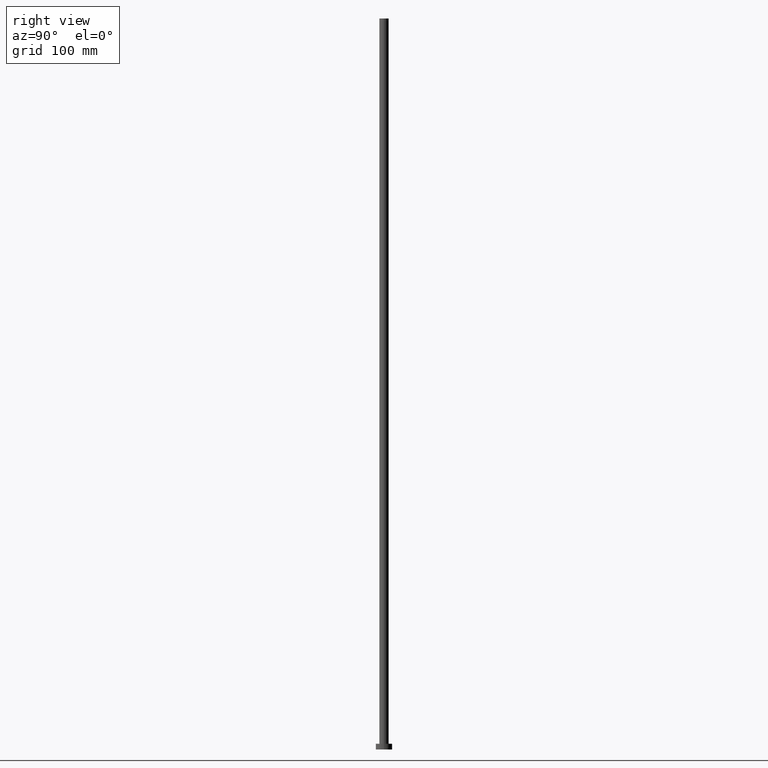
[diagram: clean part render]
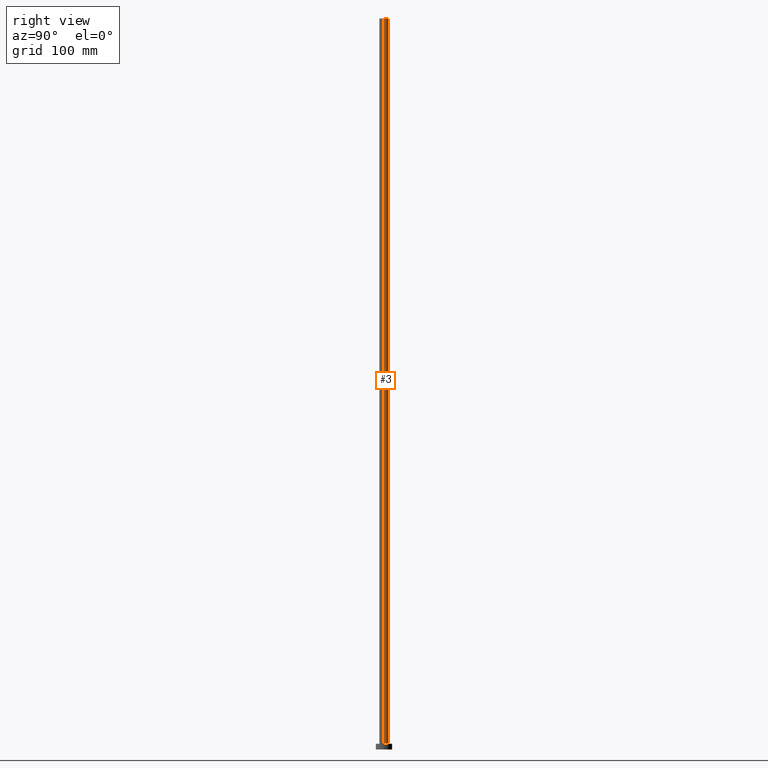
[diagram: same view with one face highlighted and labeled with its STEP entity id]
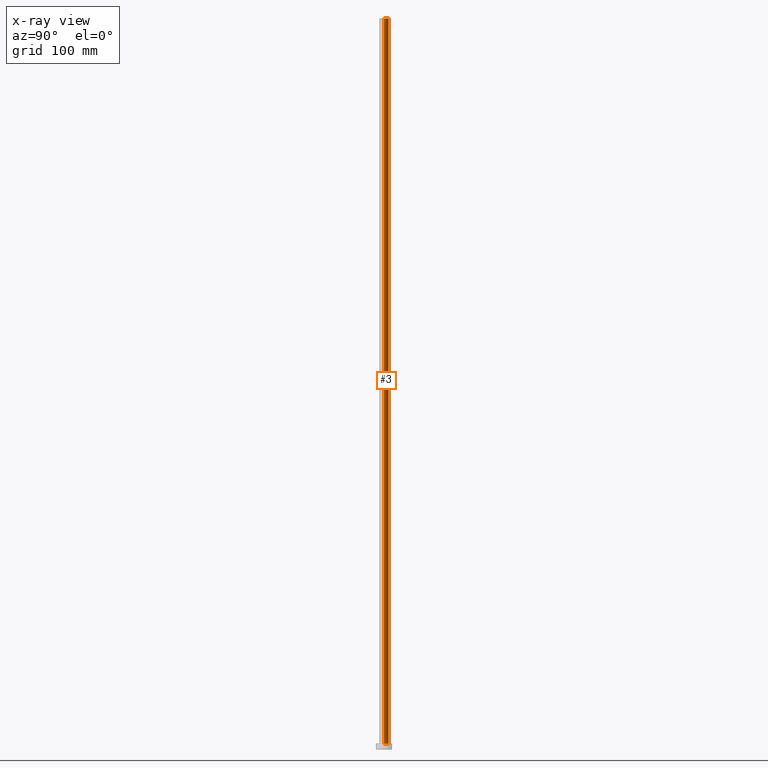
[diagram: x-ray of the same camera — body ghosted, the highlighted face saturated]
A machine part, right view. The second image highlights one B-rep face of the part: STEP entity #3.
The next image is the same camera in x-ray: the body ghosted, the highlighted face saturated — about 0% of this face is hidden behind the body in this view.
In plain terms, the highlighted cylindrical surface (edge-blend (fillet) strip) has radius 4 mm, axis along (-0, -0, -1).
Its self-contained STEP definition (entity closure, byte-faithful):
#3 = ADVANCED_FACE ( 'NONE', ( #30 ), #187, .T. ) ;
#17 = CIRCLE ( 'NONE', #217, 4.000000000000000000 ) ;
#30 = FACE_OUTER_BOUND ( 'NONE', #86, .T. ) ;
#35 = CARTESIAN_POINT ( 'NONE',  ( 0.000000000000000000, 0.000000000000000000, 630.0000000000000000 ) ) ;
#36 = LINE ( 'NONE', #120, #112 ) ;
#43 = VECTOR ( 'NONE', #113, 1000.000000000000000 ) ;
#47 = CARTESIAN_POINT ( 'NONE',  ( 4.000000000000000000, 4.898587196589412829E-16, 630.0000000000000000 ) ) ;
#49 = EDGE_CURVE ( 'NONE', #177, #219, #237, .T. ) ;
#69 = CARTESIAN_POINT ( 'NONE',  ( -4.000000000000000000, 0.000000000000000000, 630.0000000000000000 ) ) ;
#71 = CARTESIAN_POINT ( 'NONE',  ( 0.000000000000000000, 0.000000000000000000, 630.0000000000000000 ) ) ;
#74 = VERTEX_POINT ( 'NONE', #92 ) ;
#77 = CARTESIAN_POINT ( 'NONE',  ( -4.000000000000000000, 0.000000000000000000, 630.0000000000000000 ) ) ;
#86 = EDGE_LOOP ( 'NONE', ( #162, #94, #161, #198 ) ) ;
#92 = CARTESIAN_POINT ( 'NONE',  ( 4.000000000000000000, 4.898587196589412829E-16, 5.000000000000000000 ) ) ;
#94 = ORIENTED_EDGE ( 'NONE', *, *, #178, .T. ) ;
#95 = CARTESIAN_POINT ( 'NONE',  ( 0.000000000000000000, 0.000000000000000000, 5.000000000000000000 ) ) ;
#112 = VECTOR ( 'NONE', #191, 1000.000000000000000 ) ;
#113 = DIRECTION ( 'NONE',  ( -0.000000000000000000, -0.000000000000000000, -1.000000000000000000 ) ) ;
#120 = CARTESIAN_POINT ( 'NONE',  ( 4.000000000000000000, 4.898587196589412829E-16, 630.0000000000000000 ) ) ;
#125 = CIRCLE ( 'NONE', #244, 4.000000000000000000 ) ;
#128 = AXIS2_PLACEMENT_3D ( 'NONE', #71, #169, #150 ) ;
#130 = EDGE_CURVE ( 'NONE', #74, #219, #17, .T. ) ;
#147 = CARTESIAN_POINT ( 'NONE',  ( -4.000000000000000000, 0.000000000000000000, 5.000000000000000000 ) ) ;
#150 = DIRECTION ( 'NONE',  ( -1.000000000000000000, 0.000000000000000000, 0.000000000000000000 ) ) ;
#161 = ORIENTED_EDGE ( 'NONE', *, *, #130, .T. ) ;
#162 = ORIENTED_EDGE ( 'NONE', *, *, #174, .F. ) ;
#169 = DIRECTION ( 'NONE',  ( -0.000000000000000000, -0.000000000000000000, -1.000000000000000000 ) ) ;
#174 = EDGE_CURVE ( 'NONE', #223, #177, #125, .T. ) ;
#177 = VERTEX_POINT ( 'NONE', #77 ) ;
#178 = EDGE_CURVE ( 'NONE', #223, #74, #36, .T. ) ;
#187 = CYLINDRICAL_SURFACE ( 'NONE', #128, 4.000000000000000000 ) ;
#189 = DIRECTION ( 'NONE',  ( 0.000000000000000000, 0.000000000000000000, 1.000000000000000000 ) ) ;
#191 = DIRECTION ( 'NONE',  ( -0.000000000000000000, -0.000000000000000000, -1.000000000000000000 ) ) ;
#198 = ORIENTED_EDGE ( 'NONE', *, *, #49, .F. ) ;
#210 = DIRECTION ( 'NONE',  ( 1.000000000000000000, 0.000000000000000000, 0.000000000000000000 ) ) ;
#217 = AXIS2_PLACEMENT_3D ( 'NONE', #95, #189, #231 ) ;
#219 = VERTEX_POINT ( 'NONE', #147 ) ;
#223 = VERTEX_POINT ( 'NONE', #47 ) ;
#231 = DIRECTION ( 'NONE',  ( 1.000000000000000000, 0.000000000000000000, 0.000000000000000000 ) ) ;
#237 = LINE ( 'NONE', #69, #43 ) ;
#244 = AXIS2_PLACEMENT_3D ( 'NONE', #35, #248, #210 ) ;
#248 = DIRECTION ( 'NONE',  ( 0.000000000000000000, 0.000000000000000000, 1.000000000000000000 ) ) ;